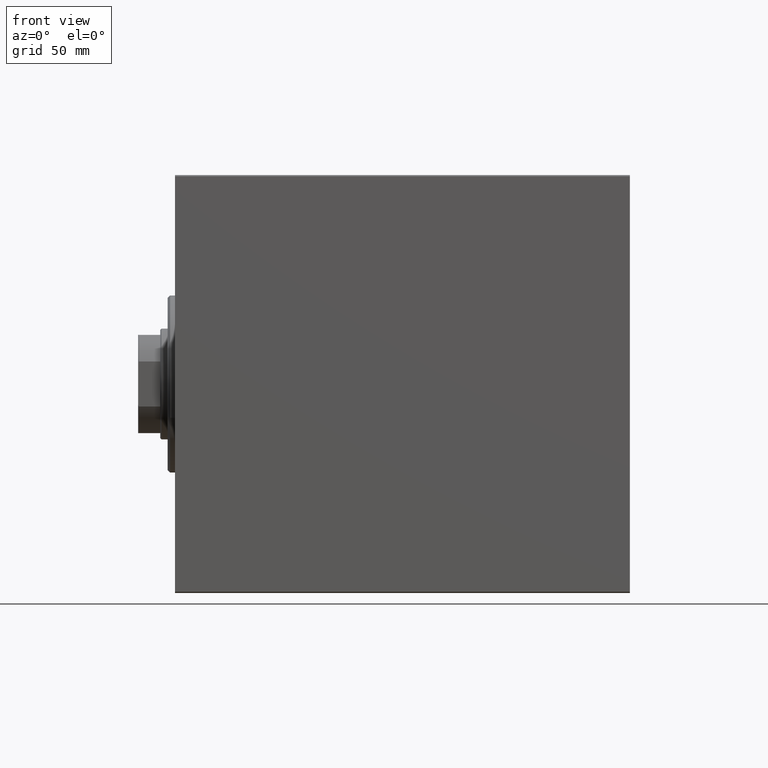
[diagram: clean part render]
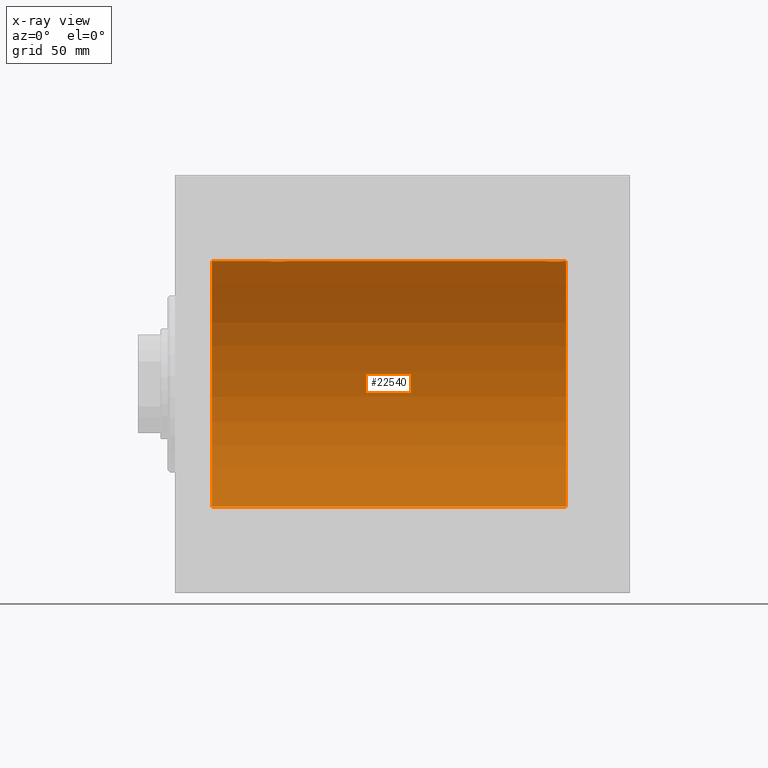
[diagram: x-ray — body ghosted, one internal face saturated and labeled with its STEP entity id]
A machine part, front view, then the same camera in x-ray: the body is ghosted and one INTERNAL B-rep face — a face not visible from any outside direction — is saturated and labeled: STEP entity #22540.
In plain terms, the highlighted cylindrical surface (partial cylindrical patch) has radius 50 mm, axis along (-1, -0, -0).
Its self-contained STEP definition (entity closure, byte-faithful):
#1034 = EDGE_CURVE ( 'NONE', #37358, #38231, #1141, .T. ) ;
#1141 = CIRCLE ( 'NONE', #16789, 50.00000000000000000 ) ;
#1785 = CARTESIAN_POINT ( 'NONE',  ( 37.88652769648385998, 1.104090919659207692, 49.98855088738324071 ) ) ;
#2008 = CARTESIAN_POINT ( 'NONE',  ( 42.55474037692811606, 4.222915468341956746, 49.82138079020267440 ) ) ;
#2518 = B_SPLINE_CURVE_WITH_KNOTS ( 'NONE', 3,
 ( #32486, #22894, #36505, #33140, #13092, #39859, #15773, #2607, #36292, #15559, #29364, #26027, #26250, #9327, #16202, #19116, #29799, #26683, #43413, #9102, #23106, #22674, #26472, #36721, #6187, #12877, #12224, #36061, #29149, #32924, #5753, #40075, #5532, #25814 ),
 .UNSPECIFIED., .F., .F.,
 ( 4, 2, 2, 2, 2, 2, 2, 2, 2, 2, 2, 2, 2, 2, 2, 2, 4 ),
 ( 3.172014289387592084E-18, 0.0008308394705804767041, 0.001661678941160950372, 0.002492518411741423932, 0.003323357882321897275, 0.004154197352902371486, 0.004985036823482845263, 0.005815876294063319039, 0.006646715764643793684, 0.007477555235224268328, 0.008308394705804742972, 0.009139234176385218483, 0.009970073646965693995, 0.01080091311754616777, 0.01163175258812664328, 0.01246259205870711879, 0.01329343152928759257 ),
 .UNSPECIFIED. ) ;
#2607 = CARTESIAN_POINT ( 'NONE',  ( 157.3801048630077162, 2.591239970584164887, 49.93334495304387843 ) ) ;
#2658 = CARTESIAN_POINT ( 'NONE',  ( 46.22241690005311909, 0.5571669497596900555, 49.99763400332482632 ) ) ;
#2812 = CARTESIAN_POINT ( 'NONE',  ( 14.99999999999998579, 0.000000000000000000, 0.000000000000000000 ) ) ;
#2920 = CARTESIAN_POINT ( 'NONE',  ( 149.7500000000000284, -2.480257572105383217E-23, 50.00000000000000000 ) ) ;
#4977 = VECTOR ( 'NONE', #26266, 1000.000000000000000 ) ;
#5362 = CARTESIAN_POINT ( 'NONE',  ( 46.03257388568556507, 1.370567417712646341, 49.98187507657574002 ) ) ;
#5428 = ORIENTED_EDGE ( 'NONE', *, *, #31929, .T. ) ;
#5532 = CARTESIAN_POINT ( 'NONE',  ( 149.7500000000000568, 0.2774387832574382595, 50.00000000000000000 ) ) ;
#5708 = DIRECTION ( 'NONE',  ( -1.000000000000000000, -0.000000000000000000, -0.000000000000000000 ) ) ;
#5753 = CARTESIAN_POINT ( 'NONE',  ( 149.8865276964838813, 1.104090919659205694, 49.98855088738323360 ) ) ;
#5821 = CARTESIAN_POINT ( 'NONE',  ( 159.0000000000000000, 0.000000000000000000, 0.000000000000000000 ) ) ;
#6017 = CARTESIAN_POINT ( 'NONE',  ( 37.75000000000000711, -2.480770331693776875E-23, 50.00000000000000000 ) ) ;
#6187 = CARTESIAN_POINT ( 'NONE',  ( 151.1937868506140035, 3.204122793140516734, 49.89762612798256924 ) ) ;
#6869 = VECTOR ( 'NONE', #24564, 1000.000000000000000 ) ;
#7687 = ORIENTED_EDGE ( 'NONE', *, *, #1034, .T. ) ;
#7961 = ORIENTED_EDGE ( 'NONE', *, *, #21273, .T. ) ;
#8228 = CARTESIAN_POINT ( 'NONE',  ( 159.0000000000000000, 6.123233995736764507E-15, -50.00000000000000000 ) ) ;
#8348 = ORIENTED_EDGE ( 'NONE', *, *, #24178, .F. ) ;
#8715 = CARTESIAN_POINT ( 'NONE',  ( 41.44247689697309056, 4.222431257622151435, 49.82142152089561904 ) ) ;
#8928 = CARTESIAN_POINT ( 'NONE',  ( 39.40842139494907315, 3.379775232620393144, 49.88587880363004956 ) ) ;
#9086 = DIRECTION ( 'NONE',  ( -1.000000000000000000, 0.000000000000000000, 0.000000000000000000 ) ) ;
#9102 = CARTESIAN_POINT ( 'NONE',  ( 152.8972786799620565, 4.113850194901012891, 49.83050476025721309 ) ) ;
#9150 = CARTESIAN_POINT ( 'NONE',  ( 45.81916120116851232, 1.885236035486731687, 49.96510958966688776 ) ) ;
#9289 = EDGE_CURVE ( 'NONE', #29316, #20794, #9453, .T. ) ;
#9327 = CARTESIAN_POINT ( 'NONE',  ( 155.3714460322091213, 4.032152715176935409, 49.83726562785247438 ) ) ;
#9376 = CARTESIAN_POINT ( 'NONE',  ( 44.59471155064525050, 3.377583483857613533, 49.88603192934380104 ) ) ;
#9453 = LINE ( 'NONE', #16770, #42435 ) ;
#10178 = EDGE_CURVE ( 'NONE', #28441, #19201, #21000, .T. ) ;
#12080 = EDGE_LOOP ( 'NONE', ( #8348, #23524, #14134, #28116, #31511, #7961, #5428, #7687 ) ) ;
#12224 = CARTESIAN_POINT ( 'NONE',  ( 150.6210426914385891, 2.592639214541025083, 49.93326838038159821 ) ) ;
#12274 = CARTESIAN_POINT ( 'NONE',  ( 38.31327765660728346, 2.132418568805247272, 49.95503838744802749 ) ) ;
#12614 = CYLINDRICAL_SURFACE ( 'NONE', #39792, 50.00000000000000000 ) ;
#12877 = CARTESIAN_POINT ( 'NONE',  ( 150.7968900733968383, 2.807369215369729165, 49.92152015083319583 ) ) ;
#13092 = CARTESIAN_POINT ( 'NONE',  ( 158.0325738856856219, 1.370567417712645897, 49.98187507657574713 ) ) ;
#13108 = CARTESIAN_POINT ( 'NONE',  ( 159.0000000000000000, 6.123233995736764507E-15, -50.00000000000000000 ) ) ;
#14134 = ORIENTED_EDGE ( 'NONE', *, *, #10178, .T. ) ;
#14197 = CIRCLE ( 'NONE', #20594, 50.00000000000000000 ) ;
#15387 = CARTESIAN_POINT ( 'NONE',  ( 37.77780584836772704, 0.5592384970569920233, 49.99761483193759659 ) ) ;
#15559 = CARTESIAN_POINT ( 'NONE',  ( 156.8086300572496441, 3.201703158387199988, 49.89777173894965756 ) ) ;
#15773 = CARTESIAN_POINT ( 'NONE',  ( 157.6885838399501836, 2.129315083715787704, 49.95517470752238864 ) ) ;
#15827 = CARTESIAN_POINT ( 'NONE',  ( 37.75000000000001421, 0.2774387832574390367, 50.00000000000000000 ) ) ;
#16202 = CARTESIAN_POINT ( 'NONE',  ( 155.1034621127867297, 4.113772393339290012, 49.83051149236716526 ) ) ;
#16255 = CARTESIAN_POINT ( 'NONE',  ( 40.63227890959592514, 4.033536463572223951, 49.83715477915254155 ) ) ;
#16770 = CARTESIAN_POINT ( 'NONE',  ( 159.0000000000000000, 0.000000000000000000, 50.00000000000000000 ) ) ;
#16789 = AXIS2_PLACEMENT_3D ( 'NONE', #2812, #9086, #26666 ) ;
#18937 = CARTESIAN_POINT ( 'NONE',  ( 159.0000000000000000, 0.000000000000000000, 50.00000000000000000 ) ) ;
#18947 = CARTESIAN_POINT ( 'NONE',  ( 44.80863005724963699, 3.201703158387178672, 49.89777173894965046 ) ) ;
#19116 = CARTESIAN_POINT ( 'NONE',  ( 154.5547403769280947, 4.222915468341965628, 49.82138079020267440 ) ) ;
#19171 = CARTESIAN_POINT ( 'NONE',  ( 39.86883186234137355, 3.687449343139592273, 49.86408027804464638 ) ) ;
#19201 = VERTEX_POINT ( 'NONE', #24830 ) ;
#19289 = DIRECTION ( 'NONE',  ( 0.000000000000000000, 0.000000000000000000, 1.000000000000000000 ) ) ;
#19384 = CARTESIAN_POINT ( 'NONE',  ( 44.13009361799669250, 3.688265093516102322, 49.86402463145034147 ) ) ;
#19601 = CARTESIAN_POINT ( 'NONE',  ( 38.62104269143860336, 2.592639214541035741, 49.93326838038160531 ) ) ;
#20594 = AXIS2_PLACEMENT_3D ( 'NONE', #5821, #39701, #43917 ) ;
#20794 = VERTEX_POINT ( 'NONE', #38282 ) ;
#21000 = LINE ( 'NONE', #34595, #6869 ) ;
#21273 = EDGE_CURVE ( 'NONE', #20794, #43600, #25917, .T. ) ;
#22540 = ADVANCED_FACE ( 'NONE', ( #43139 ), #12614, .F. ) ;
#22674 = CARTESIAN_POINT ( 'NONE',  ( 152.1175560640429865, 3.820534283589338109, 49.85393595968218250 ) ) ;
#22727 = CARTESIAN_POINT ( 'NONE',  ( 40.89727867996201383, 4.113850194901004897, 49.83050476025722020 ) ) ;
#22894 = CARTESIAN_POINT ( 'NONE',  ( 158.2500000000000568, 0.2809437491437558609, 50.00000000000002842 ) ) ;
#23106 = CARTESIAN_POINT ( 'NONE',  ( 152.6322789095959820, 4.033536463572232833, 49.83715477915254866 ) ) ;
#23156 = CARTESIAN_POINT ( 'NONE',  ( 46.11436432943420982, 1.100566060006321623, 49.98862465889502715 ) ) ;
#23524 = ORIENTED_EDGE ( 'NONE', *, *, #23841, .F. ) ;
#23841 = EDGE_CURVE ( 'NONE', #28441, #37986, #14197, .T. ) ;
#24178 = EDGE_CURVE ( 'NONE', #37986, #38231, #36737, .T. ) ;
#24564 = DIRECTION ( 'NONE',  ( -1.000000000000000000, -0.000000000000000000, -0.000000000000000000 ) ) ;
#24830 = CARTESIAN_POINT ( 'NONE',  ( 158.2500000000000284, 3.264240518254796977E-15, 50.00000000000000000 ) ) ;
#25248 = CARTESIAN_POINT ( 'NONE',  ( 159.0000000000000000, 0.000000000000000000, 50.00000000000000000 ) ) ;
#25652 = CARTESIAN_POINT ( 'NONE',  ( 45.68858383995014094, 2.129315083715793033, 49.95517470752237443 ) ) ;
#25814 = CARTESIAN_POINT ( 'NONE',  ( 149.7500000000000284, -2.480257572105383217E-23, 50.00000000000000000 ) ) ;
#25917 = B_SPLINE_CURVE_WITH_KNOTS ( 'NONE', 3,
 ( #29413, #26521, #2658, #23156, #5362, #9150, #25652, #40126, #36117, #18947, #9376, #19384, #32540, #39465, #32313, #2008, #28979, #33197, #8715, #22727, #16255, #36775, #19171, #8928, #36557, #42585, #19601, #12274, #43016, #39249, #1785, #15387, #15827, #6017 ),
 .UNSPECIFIED., .F., .F.,
 ( 4, 2, 2, 2, 2, 2, 2, 2, 2, 2, 2, 2, 2, 2, 2, 2, 4 ),
 ( 1.106815784963710050E-18, 0.0008308394705804721505, 0.001661678941160943650, 0.002492518411741415692, 0.003323357882321888602, 0.004154197352902360210, 0.004985036823482833120, 0.005815876294063306029, 0.006646715764643778071, 0.007477555235224250980, 0.008308394705804723890, 0.009139234176385195932, 0.009970073646965667974, 0.01080091311754614175, 0.01163175258812661553, 0.01246259205870708757, 0.01329343152928755961 ),
 .UNSPECIFIED. ) ;
#26027 = CARTESIAN_POINT ( 'NONE',  ( 156.1300936179967209, 3.688265093516111648, 49.86402463145034858 ) ) ;
#26250 = CARTESIAN_POINT ( 'NONE',  ( 155.8828700758230354, 3.820198949706825164, 49.85396053238191172 ) ) ;
#26266 = DIRECTION ( 'NONE',  ( -1.000000000000000000, -0.000000000000000000, -0.000000000000000000 ) ) ;
#26472 = CARTESIAN_POINT ( 'NONE',  ( 151.8688318623414091, 3.687449343139598490, 49.86408027804463927 ) ) ;
#26521 = CARTESIAN_POINT ( 'NONE',  ( 46.24999999999999289, 0.2809437491437558609, 50.00000000000002132 ) ) ;
#26666 = DIRECTION ( 'NONE',  ( 0.000000000000000000, 0.000000000000000000, 1.000000000000000000 ) ) ;
#26683 = CARTESIAN_POINT ( 'NONE',  ( 153.7241931321524930, 4.250099715408719447, 49.81903905555740408 ) ) ;
#27503 = CARTESIAN_POINT ( 'NONE',  ( 14.99999999999998579, 0.000000000000000000, 50.00000000000000000 ) ) ;
#27930 = VECTOR ( 'NONE', #40116, 1000.000000000000000 ) ;
#28116 = ORIENTED_EDGE ( 'NONE', *, *, #34011, .T. ) ;
#28441 = VERTEX_POINT ( 'NONE', #25248 ) ;
#28979 = CARTESIAN_POINT ( 'NONE',  ( 42.27887145071498765, 4.249899732140181463, 49.81905611587625060 ) ) ;
#29149 = CARTESIAN_POINT ( 'NONE',  ( 150.1801891891286118, 1.883929957684048695, 49.96515938649660882 ) ) ;
#29316 = VERTEX_POINT ( 'NONE', #2920 ) ;
#29364 = CARTESIAN_POINT ( 'NONE',  ( 156.5947115506452576, 3.377583483857621971, 49.88603192934379393 ) ) ;
#29413 = CARTESIAN_POINT ( 'NONE',  ( 46.25000000000000000, -4.016239480171725606E-17, 50.00000000000000000 ) ) ;
#29799 = CARTESIAN_POINT ( 'NONE',  ( 154.2788714507150019, 4.249899732140190345, 49.81905611587625060 ) ) ;
#29840 = LINE ( 'NONE', #18937, #27930 ) ;
#31511 = ORIENTED_EDGE ( 'NONE', *, *, #9289, .T. ) ;
#31929 = EDGE_CURVE ( 'NONE', #43600, #37358, #29840, .T. ) ;
#32313 = CARTESIAN_POINT ( 'NONE',  ( 43.10346211278671547, 4.113772393339280242, 49.83051149236716526 ) ) ;
#32486 = CARTESIAN_POINT ( 'NONE',  ( 158.2500000000000284, 3.264240518254796977E-15, 50.00000000000000000 ) ) ;
#32540 = CARTESIAN_POINT ( 'NONE',  ( 43.88287007582302124, 3.820198949706816283, 49.85396053238189751 ) ) ;
#32924 = CARTESIAN_POINT ( 'NONE',  ( 149.9669070468553116, 1.369053668635234811, 49.98191709664471460 ) ) ;
#33057 = DIRECTION ( 'NONE',  ( -1.000000000000000000, -0.000000000000000000, -0.000000000000000000 ) ) ;
#33140 = CARTESIAN_POINT ( 'NONE',  ( 158.1143643294343235, 1.100566060006324509, 49.98862465889504136 ) ) ;
#33197 = CARTESIAN_POINT ( 'NONE',  ( 41.72419313215250014, 4.250099715408711454, 49.81903905555740408 ) ) ;
#34011 = EDGE_CURVE ( 'NONE', #19201, #29316, #2518, .T. ) ;
#34595 = CARTESIAN_POINT ( 'NONE',  ( 159.0000000000000000, 0.000000000000000000, 50.00000000000000000 ) ) ;
#36061 = CARTESIAN_POINT ( 'NONE',  ( 150.3132776566072550, 2.132418568805235726, 49.95503838744805591 ) ) ;
#36117 = CARTESIAN_POINT ( 'NONE',  ( 45.20063781226178179, 2.809844036175776605, 49.92137121633497543 ) ) ;
#36292 = CARTESIAN_POINT ( 'NONE',  ( 157.2006378122617889, 2.809844036175798365, 49.92137121633495411 ) ) ;
#36505 = CARTESIAN_POINT ( 'NONE',  ( 158.2224169000531049, 0.5571669497596910547, 49.99763400332482632 ) ) ;
#36557 = CARTESIAN_POINT ( 'NONE',  ( 39.19378685061396084, 3.204122793140522951, 49.89762612798256924 ) ) ;
#36721 = CARTESIAN_POINT ( 'NONE',  ( 151.4084213949491300, 3.379775232620398917, 49.88587880363006377 ) ) ;
#36737 = LINE ( 'NONE', #13108, #4977 ) ;
#36775 = CARTESIAN_POINT ( 'NONE',  ( 40.11755606404298646, 3.820534283589331004, 49.85393595968218960 ) ) ;
#37358 = VERTEX_POINT ( 'NONE', #27503 ) ;
#37658 = CARTESIAN_POINT ( 'NONE',  ( 37.75000000000000711, -2.480770331693776875E-23, 50.00000000000000000 ) ) ;
#37986 = VERTEX_POINT ( 'NONE', #8228 ) ;
#38231 = VERTEX_POINT ( 'NONE', #39096 ) ;
#38282 = CARTESIAN_POINT ( 'NONE',  ( 46.25000000000000000, -4.016239480171725606E-17, 50.00000000000000000 ) ) ;
#39096 = CARTESIAN_POINT ( 'NONE',  ( 14.99999999999998579, 6.123233995736764507E-15, -50.00000000000000000 ) ) ;
#39249 = CARTESIAN_POINT ( 'NONE',  ( 37.96690704685525475, 1.369053668635231480, 49.98191709664470750 ) ) ;
#39465 = CARTESIAN_POINT ( 'NONE',  ( 43.37144603220910710, 4.032152715176927416, 49.83726562785246017 ) ) ;
#39701 = DIRECTION ( 'NONE',  ( -1.000000000000000000, 0.000000000000000000, 0.000000000000000000 ) ) ;
#39792 = AXIS2_PLACEMENT_3D ( 'NONE', #42918, #5708, #19289 ) ;
#39859 = CARTESIAN_POINT ( 'NONE',  ( 157.8191612011685550, 1.885236035486734796, 49.96510958966688776 ) ) ;
#40075 = CARTESIAN_POINT ( 'NONE',  ( 149.7778058483677910, 0.5592384970569878044, 49.99761483193760370 ) ) ;
#40116 = DIRECTION ( 'NONE',  ( -1.000000000000000000, -0.000000000000000000, -0.000000000000000000 ) ) ;
#40126 = CARTESIAN_POINT ( 'NONE',  ( 45.38010486300765223, 2.591239970584167995, 49.93334495304387133 ) ) ;
#42435 = VECTOR ( 'NONE', #33057, 1000.000000000000000 ) ;
#42585 = CARTESIAN_POINT ( 'NONE',  ( 38.79689007339678852, 2.807369215369738935, 49.92152015083319583 ) ) ;
#42918 = CARTESIAN_POINT ( 'NONE',  ( 159.0000000000000000, 0.000000000000000000, 0.000000000000000000 ) ) ;
#43016 = CARTESIAN_POINT ( 'NONE',  ( 38.18018918912861892, 1.883929957684043366, 49.96515938649660882 ) ) ;
#43139 = FACE_OUTER_BOUND ( 'NONE', #12080, .T. ) ;
#43413 = CARTESIAN_POINT ( 'NONE',  ( 153.4424768969730906, 4.222431257622158540, 49.82142152089561904 ) ) ;
#43600 = VERTEX_POINT ( 'NONE', #37658 ) ;
#43917 = DIRECTION ( 'NONE',  ( 0.000000000000000000, 0.000000000000000000, 1.000000000000000000 ) ) ;